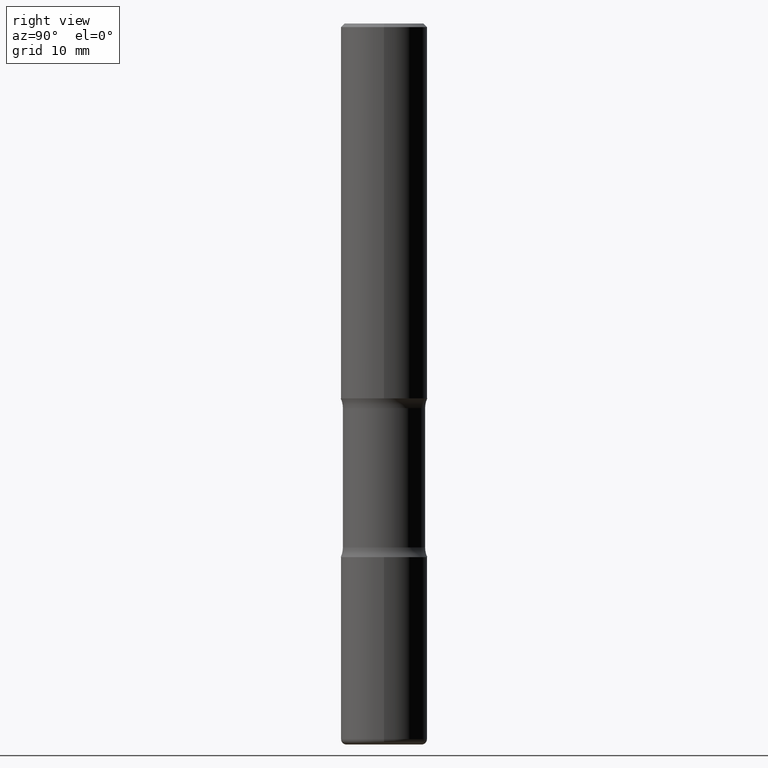
[diagram: clean part render]
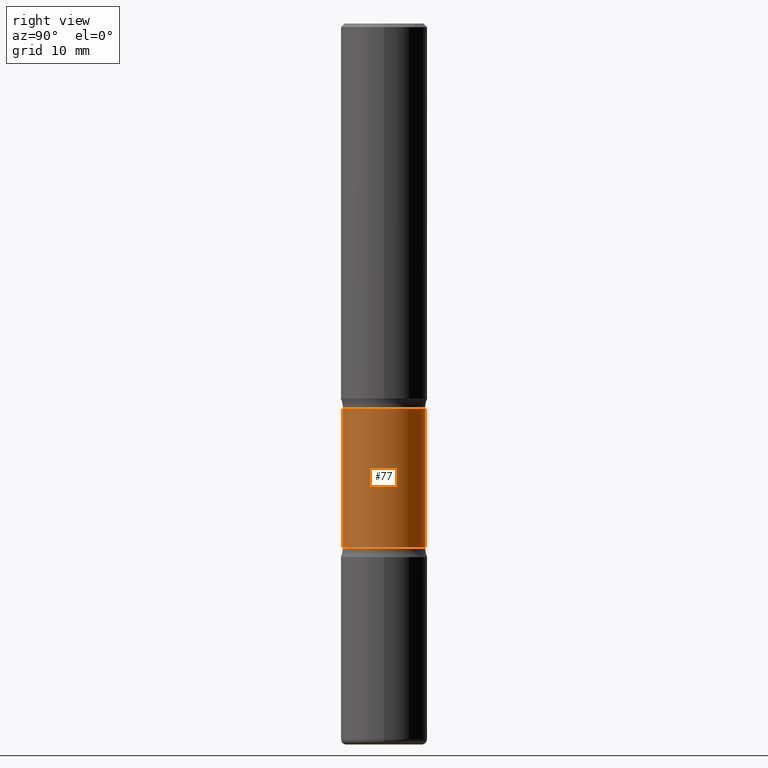
[diagram: same view with one face highlighted and labeled with its STEP entity id]
A machine part, right view. The second image highlights one B-rep face of the part: STEP entity #77.
In plain terms, the highlighted cylindrical surface (partial cylindrical patch) has radius 5.6998 mm, axis along (0, -0, -1).
Its self-contained STEP definition (entity closure, byte-faithful):
#7 = CARTESIAN_POINT ( 'NONE',  ( 1.566976824872894642E-15, 0.2243999999999863049, -3.937000000000000721 ) ) ;
#11 = CARTESIAN_POINT ( 'NONE',  ( 1.566976824872867821E-15, 0.2243999999999899686, -2.860383398826405799 ) ) ;
#43 = CARTESIAN_POINT ( 'NONE',  ( 9.710227154047748282E-29, -1.362793696358492956E-14, -3.937000000000000277 ) ) ;
#56 = CARTESIAN_POINT ( 'NONE',  ( -1.579972688886713168E-15, -0.2244000000000099804, -2.860383398826404466 ) ) ;
#74 = ORIENTED_EDGE ( 'NONE', *, *, #208, .F. ) ;
#77 = ADVANCED_FACE ( 'NONE', ( #140 ), #389, .T. ) ;
#90 = DIRECTION ( 'NONE',  ( 2.525985086076564115E-29, -3.376177443336566513E-15, -1.000000000000000000 ) ) ;
#94 = CIRCLE ( 'NONE', #233, 0.2243999999999999606 ) ;
#104 = DIRECTION ( 'NONE',  ( 2.525985086076564115E-29, -3.376177443336566513E-15, -1.000000000000000000 ) ) ;
#122 = CARTESIAN_POINT ( 'NONE',  ( 6.990709676060807691E-29, -9.993088279580958225E-15, -2.860383398826405354 ) ) ;
#127 = DIRECTION ( 'NONE',  ( 2.525985086076564115E-29, -3.376177443336566513E-15, -1.000000000000000000 ) ) ;
#140 = FACE_OUTER_BOUND ( 'NONE', #348, .T. ) ;
#157 = AXIS2_PLACEMENT_3D ( 'NONE', #122, #548, #467 ) ;
#208 = EDGE_CURVE ( 'NONE', #447, #271, #310, .T. ) ;
#209 = CARTESIAN_POINT ( 'NONE',  ( 5.070539682259229331E-29, -7.426630284172150130E-15, -2.100216601173595432 ) ) ;
#210 = VERTEX_POINT ( 'NONE', #475 ) ;
#225 = VERTEX_POINT ( 'NONE', #259 ) ;
#233 = AXIS2_PLACEMENT_3D ( 'NONE', #209, #90, #263 ) ;
#253 = LINE ( 'NONE', #432, #514 ) ;
#259 = CARTESIAN_POINT ( 'NONE',  ( 1.566976824872848494E-15, 0.2243999999999925499, -2.100216601173596320 ) ) ;
#263 = DIRECTION ( 'NONE',  ( 6.982962677686265922E-15, 1.000000000000000000, -3.652203200085913934E-15 ) ) ;
#271 = VERTEX_POINT ( 'NONE', #56 ) ;
#310 = CIRCLE ( 'NONE', #157, 0.2243999999999999606 ) ;
#345 = EDGE_CURVE ( 'NONE', #210, #271, #253, .T. ) ;
#348 = EDGE_LOOP ( 'NONE', ( #490, #522, #74, #433 ) ) ;
#349 = DIRECTION ( 'NONE',  ( 2.525985086076564115E-29, -3.376177443336566513E-15, -1.000000000000000000 ) ) ;
#389 = CYLINDRICAL_SURFACE ( 'NONE', #470, 0.2243999999999999329 ) ;
#396 = LINE ( 'NONE', #7, #411 ) ;
#406 = EDGE_CURVE ( 'NONE', #225, #210, #94, .T. ) ;
#411 = VECTOR ( 'NONE', #349, 39.37007874015748143 ) ;
#416 = EDGE_CURVE ( 'NONE', #225, #447, #396, .T. ) ;
#432 = CARTESIAN_POINT ( 'NONE',  ( -1.539495750699834052E-15, -0.2244000000000135608, -3.936999999999999389 ) ) ;
#433 = ORIENTED_EDGE ( 'NONE', *, *, #416, .F. ) ;
#447 = VERTEX_POINT ( 'NONE', #11 ) ;
#455 = DIRECTION ( 'NONE',  ( 6.982962677686265922E-15, 1.000000000000000000, -2.434802133390609815E-15 ) ) ;
#467 = DIRECTION ( 'NONE',  ( 6.982962677686265922E-15, 1.000000000000000000, -2.434802133390609421E-15 ) ) ;
#470 = AXIS2_PLACEMENT_3D ( 'NONE', #43, #104, #455 ) ;
#475 = CARTESIAN_POINT ( 'NONE',  ( -1.579972688886734072E-15, -0.2244000000000073713, -2.100216601173594544 ) ) ;
#490 = ORIENTED_EDGE ( 'NONE', *, *, #406, .T. ) ;
#514 = VECTOR ( 'NONE', #127, 39.37007874015748143 ) ;
#522 = ORIENTED_EDGE ( 'NONE', *, *, #345, .T. ) ;
#548 = DIRECTION ( 'NONE',  ( 2.525985086076564115E-29, -3.376177443336566513E-15, -1.000000000000000000 ) ) ;